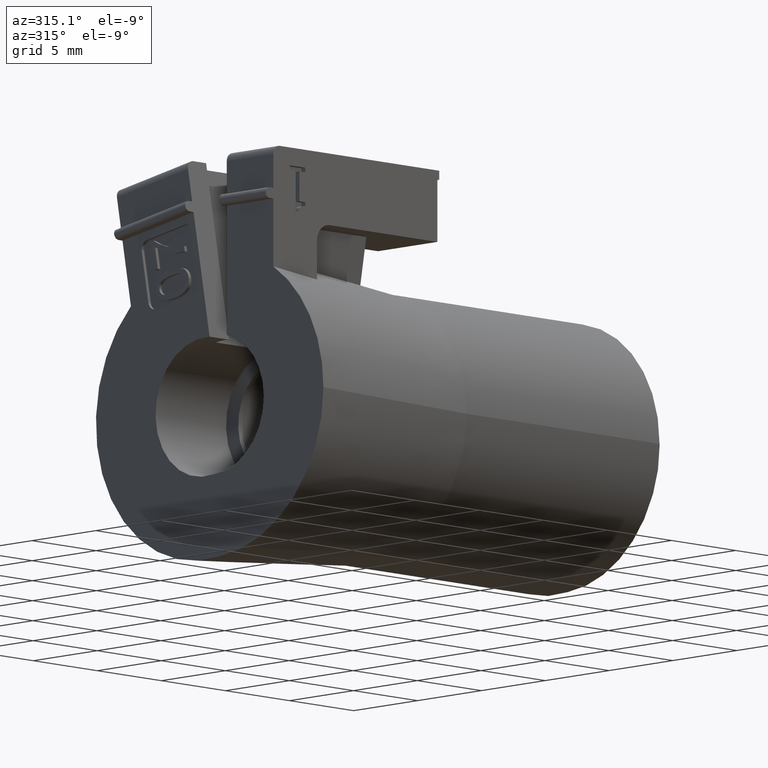
[diagram: clean part render]
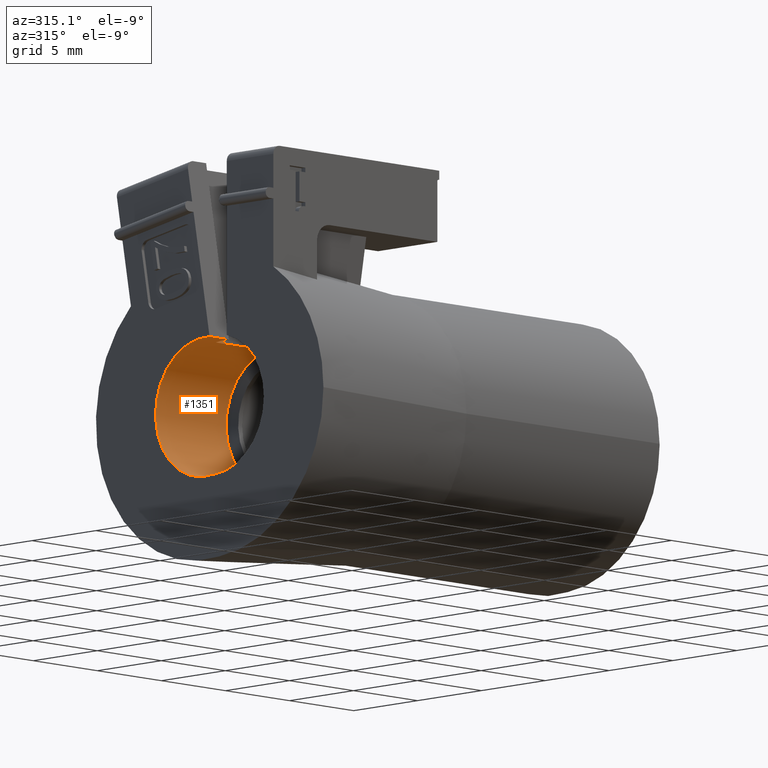
[diagram: same view with one face highlighted and labeled with its STEP entity id]
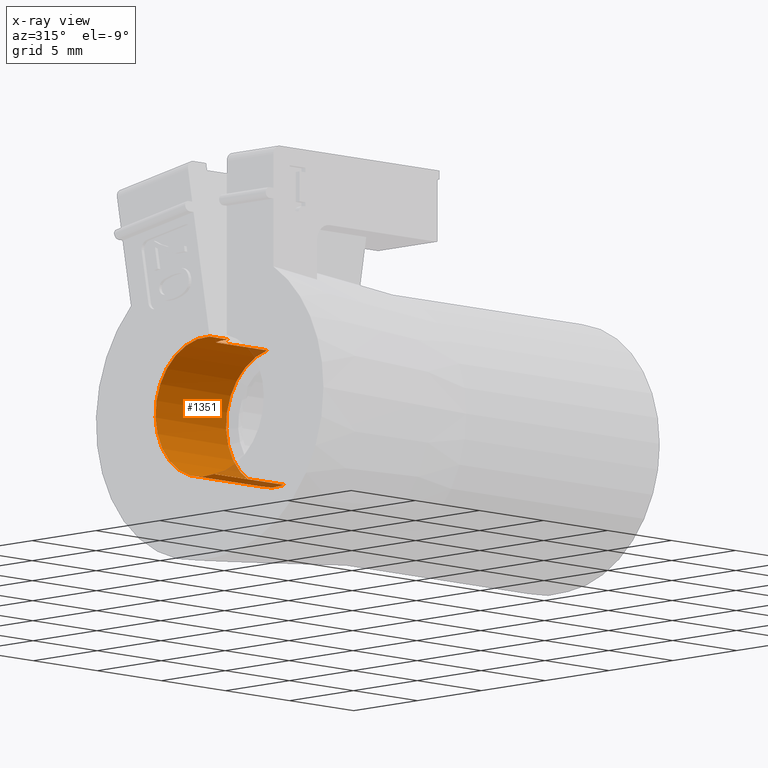
[diagram: x-ray of the same camera — body ghosted, the highlighted face saturated]
A machine part, auxiliary view. The second image highlights one B-rep face of the part: STEP entity #1351.
The next image is the same camera in x-ray: the body ghosted, the highlighted face saturated — about 4% of this face is hidden behind the body in this view.
In plain terms, the highlighted cylindrical surface (partial cylindrical patch) has radius 3.9 mm, axis along (-1, 0, -0).
Its self-contained STEP definition (entity closure, byte-faithful):
#30 = CARTESIAN_POINT ( 'NONE',  ( -0.01574803149606551420, 0.05332503093708890890, 0.1488779713974495988 ) ) ;
#252 = CARTESIAN_POINT ( 'NONE',  ( 1.062992125984249192, 0.02666251546854176910, -0.002332667844582047168 ) ) ;
#254 = AXIS2_PLACEMENT_3D ( 'NONE', #2410, #2657, #1249 ) ;
#334 = LINE ( 'NONE', #30, #2994 ) ;
#453 = CARTESIAN_POINT ( 'NONE',  ( 0.1851807023026047216, 0.02666251546854397220, -0.002332667844582339469 ) ) ;
#471 = AXIS2_PLACEMENT_3D ( 'NONE', #3086, #1652, #3277 ) ;
#537 = AXIS2_PLACEMENT_3D ( 'NONE', #453, #1793, #2881 ) ;
#538 = CARTESIAN_POINT ( 'NONE',  ( 1.062992125984249192, 0.01366169206792311117, 0.1506592461312886988 ) ) ;
#564 = VERTEX_POINT ( 'NONE', #1362 ) ;
#573 = DIRECTION ( 'NONE',  ( -2.668805347656625692E-15, -1.000000000000000000, 0.0000000000000000000 ) ) ;
#759 = VERTEX_POINT ( 'NONE', #1538 ) ;
#990 = ORIENTED_EDGE ( 'NONE', *, *, #3233, .F. ) ;
#1054 = LINE ( 'NONE', #538, #1329 ) ;
#1097 = EDGE_LOOP ( 'NONE', ( #1546, #2906, #990, #2121, #2528, #1828 ) ) ;
#1156 = CIRCLE ( 'NONE', #471, 0.1535433070866142058 ) ;
#1228 = EDGE_CURVE ( 'NONE', #564, #759, #2551, .T. ) ;
#1249 = DIRECTION ( 'NONE',  ( -2.502005013428086882E-15, -1.000000000000000000, 0.0000000000000000000 ) ) ;
#1328 = CYLINDRICAL_SURFACE ( 'NONE', #1577, 0.1535433070866142058 ) ;
#1329 = VECTOR ( 'NONE', #3251, 39.37007874015748143 ) ;
#1351 = ADVANCED_FACE ( 'NONE', ( #3541 ), #1328, .F. ) ;
#1362 = CARTESIAN_POINT ( 'NONE',  ( 0.1851807023001631192, 0.05332503093614456707, 0.1488779713916495995 ) ) ;
#1363 = DIRECTION ( 'NONE',  ( -1.000000000000000000, 2.511181000000000129E-15, -3.330658000000000231E-16 ) ) ;
#1402 = VECTOR ( 'NONE', #2981, 39.37007874015748143 ) ;
#1457 = CARTESIAN_POINT ( 'NONE',  ( 0.02755905511809657663, 0.01366169206792557621, 0.1506592461312883657 ) ) ;
#1492 = VERTEX_POINT ( 'NONE', #1457 ) ;
#1511 = VERTEX_POINT ( 'NONE', #2289 ) ;
#1538 = CARTESIAN_POINT ( 'NONE',  ( 0.1851807022971392047, -1.550960843752467072E-14, -0.1535433070838148895 ) ) ;
#1546 = ORIENTED_EDGE ( 'NONE', *, *, #3429, .T. ) ;
#1577 = AXIS2_PLACEMENT_3D ( 'NONE', #252, #1363, #573 ) ;
#1619 = LINE ( 'NONE', #3211, #1402 ) ;
#1652 = DIRECTION ( 'NONE',  ( -1.000000000000000000, 2.511181000000000129E-15, -3.330658000000000231E-16 ) ) ;
#1724 = VERTEX_POINT ( 'NONE', #2899 ) ;
#1793 = DIRECTION ( 'NONE',  ( -1.000000000000000000, 2.511181000000000129E-15, -3.330658000000000231E-16 ) ) ;
#1828 = ORIENTED_EDGE ( 'NONE', *, *, #1228, .F. ) ;
#1926 = CIRCLE ( 'NONE', #254, 0.1535433070866142058 ) ;
#2121 = ORIENTED_EDGE ( 'NONE', *, *, #2189, .T. ) ;
#2189 = EDGE_CURVE ( 'NONE', #1511, #1724, #1926, .T. ) ;
#2226 = EDGE_CURVE ( 'NONE', #1724, #759, #1619, .T. ) ;
#2283 = CARTESIAN_POINT ( 'NONE',  ( 0.02755905511809680214, 0.05332503093708879788, 0.1488779713974495988 ) ) ;
#2289 = CARTESIAN_POINT ( 'NONE',  ( -0.03149606299212872468, 0.01366169206792586070, 0.1506592461312883380 ) ) ;
#2410 = CARTESIAN_POINT ( 'NONE',  ( -0.03149606299212852345, 0.02666251546854452037, -0.002332667844582411894 ) ) ;
#2528 = ORIENTED_EDGE ( 'NONE', *, *, #2226, .T. ) ;
#2551 = CIRCLE ( 'NONE', #537, 0.1535433070866142058 ) ;
#2657 = DIRECTION ( 'NONE',  ( -1.000000000000000000, 2.511181000000000129E-15, -3.330658000000000231E-16 ) ) ;
#2710 = VERTEX_POINT ( 'NONE', #2283 ) ;
#2842 = DIRECTION ( 'NONE',  ( -1.000000000000000000, 2.492417443442747204E-15, -4.394804424673724796E-16 ) ) ;
#2881 = DIRECTION ( 'NONE',  ( -2.446404902018573551E-15, -1.000000000000000000, 0.0000000000000000000 ) ) ;
#2899 = CARTESIAN_POINT ( 'NONE',  ( -0.03149606299213419253, 1.069599096203871981E-16, -0.1535433070866141780 ) ) ;
#2906 = ORIENTED_EDGE ( 'NONE', *, *, #2989, .F. ) ;
#2981 = DIRECTION ( 'NONE',  ( 1.000000000000000000, -2.508281999999999843E-15, -0.0000000000000000000 ) ) ;
#2989 = EDGE_CURVE ( 'NONE', #1492, #2710, #1156, .T. ) ;
#2994 = VECTOR ( 'NONE', #2842, 39.37007874015748143 ) ;
#3086 = CARTESIAN_POINT ( 'NONE',  ( 0.02755905511809654887, 0.02666251546854436771, -0.002332667844582392378 ) ) ;
#3211 = CARTESIAN_POINT ( 'NONE',  ( 1.062992125984249192, -2.638078016633811031E-15, -0.1535433070866141780 ) ) ;
#3233 = EDGE_CURVE ( 'NONE', #1511, #1492, #1054, .T. ) ;
#3251 = DIRECTION ( 'NONE',  ( 1.000000000000000000, -2.511181000000000129E-15, 3.330658000000000231E-16 ) ) ;
#3277 = DIRECTION ( 'NONE',  ( -2.502005013428086882E-15, -1.000000000000000000, 0.0000000000000000000 ) ) ;
#3429 = EDGE_CURVE ( 'NONE', #564, #2710, #334, .T. ) ;
#3541 = FACE_OUTER_BOUND ( 'NONE', #1097, .T. ) ;